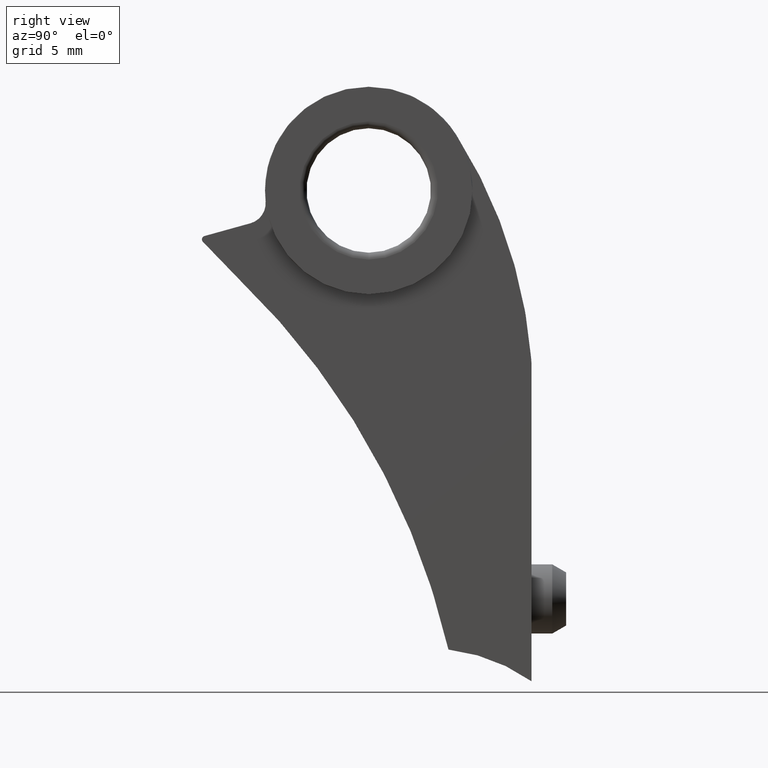
[diagram: clean part render]
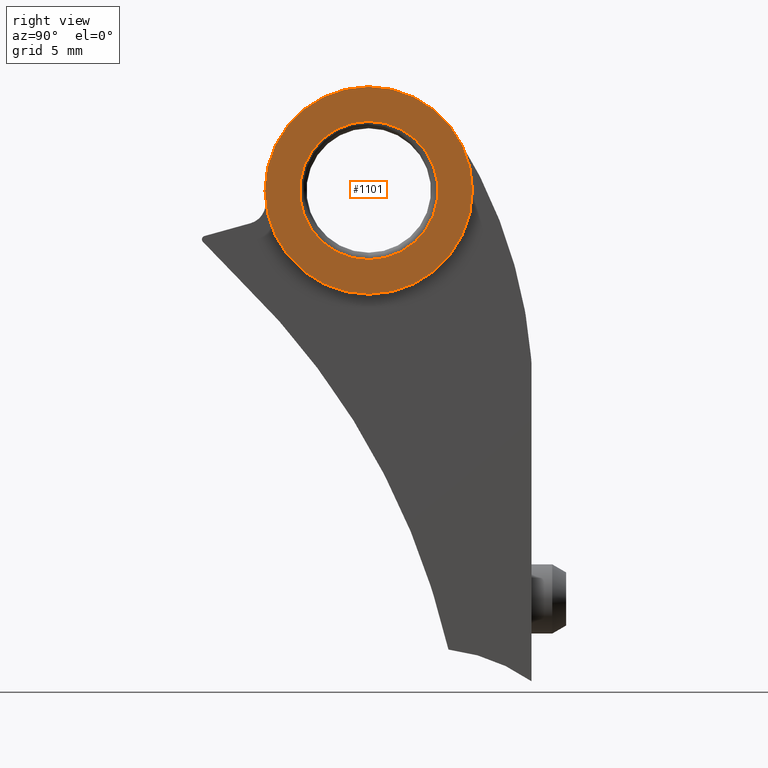
[diagram: same view with one face highlighted and labeled with its STEP entity id]
A machine part, right view. The second image highlights one B-rep face of the part: STEP entity #1101.
In plain terms, the highlighted planar face has unit normal (1, 0, -0).
Its self-contained STEP definition (entity closure, byte-faithful):
#23 = DIRECTION ( 'NONE',  ( 1.000000000000000000, 0.0000000000000000000, -6.052673018837545200E-017 ) ) ;
#40 = DIRECTION ( 'NONE',  ( -1.156482317317871500E-016, 0.0000000000000000000, -1.000000000000000000 ) ) ;
#87 = AXIS2_PLACEMENT_3D ( 'NONE', #852, #1186, #1289 ) ;
#146 = CIRCLE ( 'NONE', #306, 7.500000000000000000 ) ;
#233 = DIRECTION ( 'NONE',  ( 0.0000000000000000000, 0.0000000000000000000, -1.000000000000000000 ) ) ;
#258 = FACE_BOUND ( 'NONE', #464, .T. ) ;
#266 = VERTEX_POINT ( 'NONE', #1038 ) ;
#306 = AXIS2_PLACEMENT_3D ( 'NONE', #675, #23, #781 ) ;
#338 = DIRECTION ( 'NONE',  ( -1.000000000000000000, -0.0000000000000000000, 6.052673018837545200E-017 ) ) ;
#434 = CARTESIAN_POINT ( 'NONE',  ( 7.500000000000003600, -26.47209325125959000, 35.49067876071980300 ) ) ;
#464 = EDGE_LOOP ( 'NONE', ( #1263, #593 ) ) ;
#469 = CARTESIAN_POINT ( 'NONE',  ( 7.500000000000003600, -26.47209325125959000, 30.49067876071980600 ) ) ;
#593 = ORIENTED_EDGE ( 'NONE', *, *, #1209, .T. ) ;
#632 = CARTESIAN_POINT ( 'NONE',  ( 7.500000000000003600, -26.47209325125959000, 40.49067876071980300 ) ) ;
#665 = VERTEX_POINT ( 'NONE', #469 ) ;
#667 = CARTESIAN_POINT ( 'NONE',  ( 7.500000000000002700, -26.47209325125959000, 27.99067876071980600 ) ) ;
#675 = CARTESIAN_POINT ( 'NONE',  ( 7.500000000000003600, -26.47209325125959000, 35.49067876071980300 ) ) ;
#688 = DIRECTION ( 'NONE',  ( 1.000000000000000000, 0.0000000000000000000, -6.052673018837545200E-017 ) ) ;
#700 = ORIENTED_EDGE ( 'NONE', *, *, #908, .T. ) ;
#746 = CIRCLE ( 'NONE', #1005, 4.999999999999997300 ) ;
#781 = DIRECTION ( 'NONE',  ( -1.156482317317871500E-016, 0.0000000000000000000, -1.000000000000000000 ) ) ;
#824 = EDGE_CURVE ( 'NONE', #833, #266, #146, .T. ) ;
#833 = VERTEX_POINT ( 'NONE', #667 ) ;
#852 = CARTESIAN_POINT ( 'NONE',  ( 7.500000000000003600, -26.47209325125959000, 35.49067876071980300 ) ) ;
#869 = ORIENTED_EDGE ( 'NONE', *, *, #824, .T. ) ;
#908 = EDGE_CURVE ( 'NONE', #266, #833, #996, .T. ) ;
#913 = CIRCLE ( 'NONE', #87, 4.999999999999997300 ) ;
#996 = CIRCLE ( 'NONE', #1054, 7.500000000000000000 ) ;
#1005 = AXIS2_PLACEMENT_3D ( 'NONE', #1093, #338, #233 ) ;
#1028 = EDGE_CURVE ( 'NONE', #665, #1239, #913, .T. ) ;
#1038 = CARTESIAN_POINT ( 'NONE',  ( 7.500000000000004400, -26.47209325125959000, 42.99067876071980300 ) ) ;
#1054 = AXIS2_PLACEMENT_3D ( 'NONE', #1321, #688, #40 ) ;
#1071 = PLANE ( 'NONE',  #1269 ) ;
#1093 = CARTESIAN_POINT ( 'NONE',  ( 7.500000000000003600, -26.47209325125959000, 35.49067876071980300 ) ) ;
#1101 = ADVANCED_FACE ( 'NONE', ( #258, #1245 ), #1071, .T. ) ;
#1186 = DIRECTION ( 'NONE',  ( -1.000000000000000000, -0.0000000000000000000, 6.052673018837545200E-017 ) ) ;
#1209 = EDGE_CURVE ( 'NONE', #1239, #665, #746, .T. ) ;
#1239 = VERTEX_POINT ( 'NONE', #632 ) ;
#1245 = FACE_OUTER_BOUND ( 'NONE', #1352, .T. ) ;
#1263 = ORIENTED_EDGE ( 'NONE', *, *, #1028, .T. ) ;
#1269 = AXIS2_PLACEMENT_3D ( 'NONE', #434, #1342, #1294 ) ;
#1289 = DIRECTION ( 'NONE',  ( 0.0000000000000000000, 0.0000000000000000000, -1.000000000000000000 ) ) ;
#1294 = DIRECTION ( 'NONE',  ( -6.052673018837545200E-017, 0.0000000000000000000, -1.000000000000000000 ) ) ;
#1321 = CARTESIAN_POINT ( 'NONE',  ( 7.500000000000003600, -26.47209325125959000, 35.49067876071980300 ) ) ;
#1342 = DIRECTION ( 'NONE',  ( 1.000000000000000000, 0.0000000000000000000, -6.052673018837545200E-017 ) ) ;
#1352 = EDGE_LOOP ( 'NONE', ( #700, #869 ) ) ;